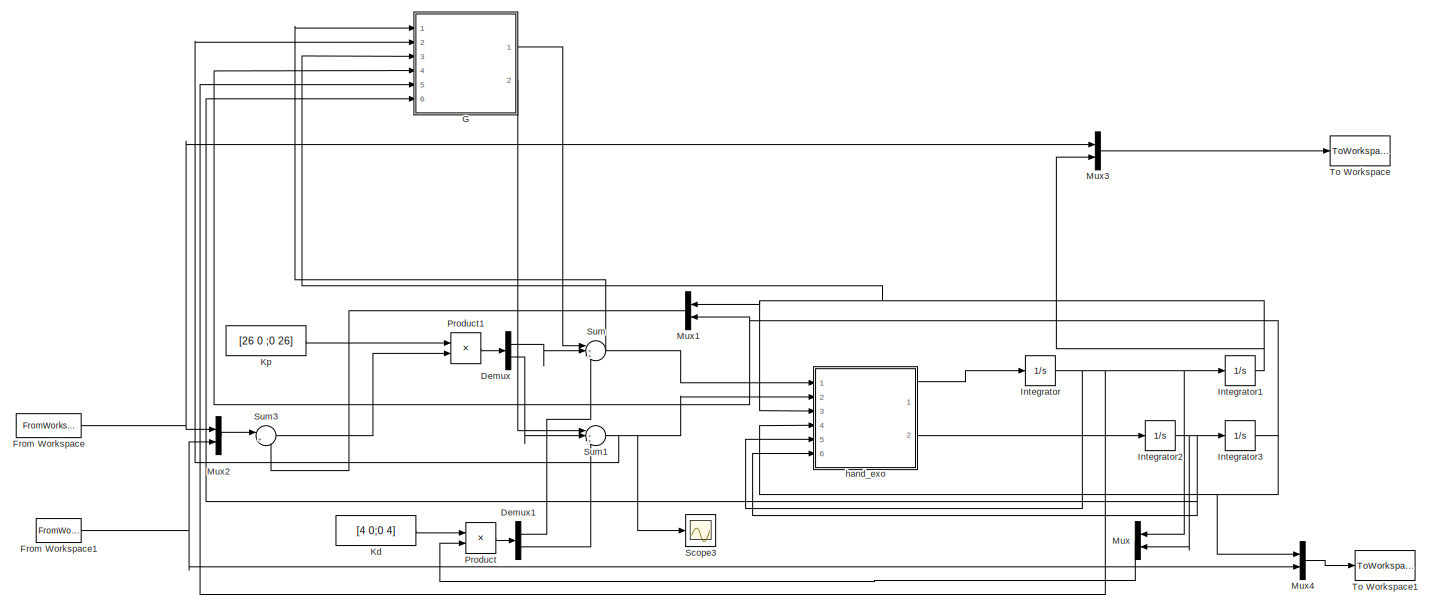
[diagram: root canvas - part 1/2, most of the canvas]
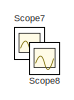
[diagram: root canvas - part 2/2, bottom right region]
MODEL slx_da8fc721fb78
KIND model
CONFIG AbsTol = auto
CONFIG FixedStep = auto
CONFIG MaxStep = auto
CONFIG MinStep = auto
CONFIG RelTol = 1e-8
CONFIG SampleTimeConstraint = Unconstrained
CONFIG Solver = ode15s
CONFIG SolverMode = Auto
CONFIG SolverName = ode15s
CONFIG StartTime = 0.0
CONFIG StopTime = 15
BLOCK [Demux] Demux
  DisplayOption = bar
  Outputs = 2
  Ports = [1, 2]
BLOCK [Demux] Demux1
  DisplayOption = bar
  Outputs = 2
  Ports = [1, 2]
BLOCK [FromWorkspace] From Workspace
  SampleTime = 0
  VariableName = y1
  ZeroCross = on
BLOCK [FromWorkspace] From Workspace1
  SampleTime = 0
  VariableName = y2
  ZeroCross = on
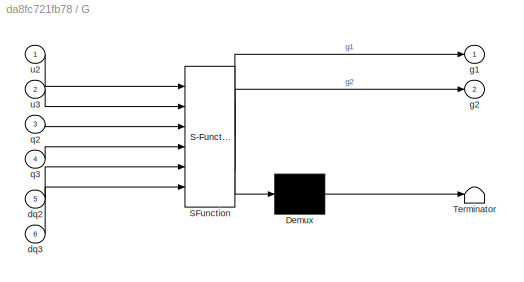
BLOCK [SubSystem] G
  ErrorFcn = Stateflow.Translate.translate
  PermitHierarchicalResolution = ExplicitOnly
  Ports = [6, 2]
  RequestExecContextInheritance = off
  SFBlockType = MATLAB Function
  TreatAsAtomicUnit = on
  Variant = off
BLOCK [Demux] G/ Demux 
  Outputs = 1
  Ports = [1, 1]
BLOCK [S-Function] G/ SFunction 
  EnableBusSupport = on
  FunctionName = sf_sfun
  PortCounts = [6 3]
  Ports = [6, 3]
  SFunctionDeploymentMode = off
  Tag = Stateflow S-Function hand_exo 1
BLOCK [Terminator] G/ Terminator 
BLOCK [Inport] G/dq2
  IconDisplay = Port number
  Port = 5
BLOCK [Inport] G/dq3
  IconDisplay = Port number
  Port = 6
BLOCK [Outport] G/g1
  IconDisplay = Port number
BLOCK [Outport] G/g2
  IconDisplay = Port number
  Port = 2
BLOCK [Inport] G/q2
  IconDisplay = Port number
  Port = 3
BLOCK [Inport] G/q3
  IconDisplay = Port number
  Port = 4
BLOCK [Inport] G/u2
  IconDisplay = Port number
BLOCK [Inport] G/u3
  IconDisplay = Port number
  Port = 2
BLOCK [Integrator] Integrator
  IgnoreLimit = on
  LowerSaturationLimit = -10
  Ports = [1, 1]
  UpperSaturationLimit = 10
  ZeroCross = off
BLOCK [Integrator] Integrator1
  LowerSaturationLimit = -100
  Ports = [1, 1]
  UpperSaturationLimit = 100
BLOCK [Integrator] Integrator2
  LowerSaturationLimit = -100
  Ports = [1, 1]
  UpperSaturationLimit = 100
BLOCK [Integrator] Integrator3
  LowerSaturationLimit = -100
  Ports = [1, 1]
  UpperSaturationLimit = 100
BLOCK [Constant] Kd
  Value = [4 0;0 4]
BLOCK [Constant] Kp
  Value = [26 0 ;0 26]
BLOCK [Mux] Mux
  DisplayOption = bar
  Inputs = 2
  Ports = [2, 1]
BLOCK [Mux] Mux1
  DisplayOption = bar
  Inputs = 2
  Ports = [2, 1]
BLOCK [Mux] Mux2
  DisplayOption = bar
  Inputs = 2
  Ports = [2, 1]
BLOCK [Mux] Mux3
  DisplayOption = bar
  Inputs = 2
  Ports = [2, 1]
BLOCK [Mux] Mux4
  DisplayOption = bar
  Inputs = 2
  Ports = [2, 1]
BLOCK [Product] Product
  InputSameDT = off
  Multiplication = Matrix(*)
  OutDataTypeStr = Inherit: Inherit via internal rule
  Ports = [2, 1]
  RndMeth = Floor
  SaturateOnIntegerOverflow = off
BLOCK [Product] Product1
  InputSameDT = off
  Multiplication = Matrix(*)
  OutDataTypeStr = Inherit: Inherit via internal rule
  Ports = [2, 1]
  RndMeth = Floor
  SaturateOnIntegerOverflow = off
BLOCK [Scope] Scope3
  Ports = [1]
  ScopeSpecificationString = Simulink.scopes.TimeScopeBlockCfg('CurrentConfiguration', extmgr.ConfigurationSet(extmgr.Configuration('Core','General UI',true),extmgr.Configuration('Core','Source UI',true),extmgr.Configuration('Sources','WiredSimulink',true,'DataLoggingVariableName','ScopeData3'),extmgr.Configuration('Visuals','Time Domain',true,'SerializedDisplays',{struct('MinYLimReal','-0.11773','MaxYLimReal','1.05957','YLab...<+1396ch>
BLOCK [Scope] Scope7
  Ports = [1]
  ScopeSpecificationString = Simulink.scopes.TimeScopeBlockCfg('CurrentConfiguration', extmgr.ConfigurationSet(extmgr.Configuration('Core','General UI',true),extmgr.Configuration('Core','Source UI',true),extmgr.Configuration('Sources','WiredSimulink',true,'DataLoggingVariableName','ScopeData4'),extmgr.Configuration('Visuals','Time Domain',true,'SerializedDisplays',{struct('MinYLimReal','-1.09289','MaxYLimReal','9.83599','YLab...<+1403ch>
BLOCK [Scope] Scope8
  Ports = [1]
  ScopeSpecificationString = Simulink.scopes.TimeScopeBlockCfg('CurrentConfiguration', extmgr.ConfigurationSet(extmgr.Configuration('Core','General UI',true),extmgr.Configuration('Core','Source UI',true),extmgr.Configuration('Sources','WiredSimulink',true,'DataLoggingVariableName','ScopeData5'),extmgr.Configuration('Visuals','Time Domain',true,'SerializedDisplays',{struct('MinYLimReal','-1.09289','MaxYLimReal','9.83599','YLab...<+1403ch>
BLOCK [Sum] Sum
  IconShape = round
  InputSameDT = off
  Inputs = |++-
  OutDataTypeStr = Inherit: Inherit via internal rule
  Ports = [3, 1]
  SaturateOnIntegerOverflow = off
BLOCK [Sum] Sum1
  IconShape = round
  InputSameDT = off
  Inputs = |++-
  OutDataTypeStr = Inherit: Inherit via internal rule
  Ports = [3, 1]
  SaturateOnIntegerOverflow = off
BLOCK [Sum] Sum3
  IconShape = round
  InputSameDT = off
  Inputs = |+-
  OutDataTypeStr = Inherit: Inherit via internal rule
  Ports = [2, 1]
  SaturateOnIntegerOverflow = off
BLOCK [ToWorkspace] To Workspace
  FixptAsFi = on
  MaxDataPoints = inf
  Ports = [1]
  SampleTime = -1
  Save2DSignal = 3-D array (concatenate along third dimension)
  SaveFormat = Timeseries
  VariableName = simout
BLOCK [ToWorkspace] To Workspace1
  FixptAsFi = on
  MaxDataPoints = inf
  Ports = [1]
  SampleTime = -1
  Save2DSignal = 3-D array (concatenate along third dimension)
  SaveFormat = Timeseries
  VariableName = simout1
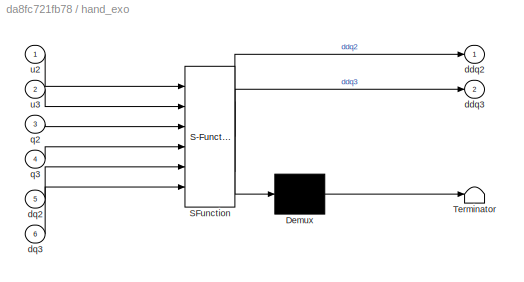
BLOCK [SubSystem] hand_exo
  ErrorFcn = Stateflow.Translate.translate
  PermitHierarchicalResolution = ExplicitOnly
  Ports = [6, 2]
  RequestExecContextInheritance = off
  SFBlockType = MATLAB Function
  TreatAsAtomicUnit = on
  Variant = off
BLOCK [Demux] hand_exo/ Demux 
  Outputs = 1
  Ports = [1, 1]
BLOCK [S-Function] hand_exo/ SFunction 
  EnableBusSupport = on
  FunctionName = sf_sfun
  PortCounts = [6 3]
  Ports = [6, 3]
  SFunctionDeploymentMode = off
  Tag = Stateflow S-Function hand_exo 5
BLOCK [Terminator] hand_exo/ Terminator 
BLOCK [Outport] hand_exo/ddq2
  IconDisplay = Port number
BLOCK [Outport] hand_exo/ddq3
  IconDisplay = Port number
  Port = 2
BLOCK [Inport] hand_exo/dq2
  IconDisplay = Port number
  Port = 5
BLOCK [Inport] hand_exo/dq3
  IconDisplay = Port number
  Port = 6
BLOCK [Inport] hand_exo/q2
  IconDisplay = Port number
  Port = 3
BLOCK [Inport] hand_exo/q3
  IconDisplay = Port number
  Port = 4
BLOCK [Inport] hand_exo/u2
  IconDisplay = Port number
BLOCK [Inport] hand_exo/u3
  IconDisplay = Port number
  Port = 2
LINE Demux1:1 -> Sum:3
LINE Demux1:2 -> Sum1:3
LINE Demux:1 -> Sum:2
LINE Demux:2 -> Sum1:2
NET From Workspace1:1 -> Mux2:2, Mux4:2
NET From Workspace:1 -> Mux2:1, Mux3:1
LINE G:1 -> Sum:1
LINE G:2 -> Sum1:1
NET Integrator1:1 -> G:3, Mux1:1, Mux3:2, hand_exo:3
NET Integrator2:1 -> G:6, Integrator3:1, Mux:2, hand_exo:6
NET Integrator3:1 -> G:4, Mux1:2, Mux4:1, hand_exo:4
NET Integrator:1 -> G:5, Integrator1:1, Mux:1, hand_exo:5
LINE Kd:1 -> Product:1
LINE Kp:1 -> Product1:1
LINE Mux1:1 -> Sum3:2
LINE Mux2:1 -> Sum3:1
LINE Mux3:1 -> To Workspace:1
LINE Mux4:1 -> To Workspace1:1
LINE Mux:1 -> Product:2
LINE Product1:1 -> Demux:1
LINE Product:1 -> Demux1:1
NET Sum1:1 -> G:2, Scope3:1, hand_exo:2
LINE Sum3:1 -> Product1:2
NET Sum:1 -> G:1, hand_exo:1
LINE hand_exo:1 -> Integrator:1
LINE hand_exo:2 -> Integrator2:1
note: NET lines group one-source signal fan-out (src -> all destinations, sorted); 1:1 wires keep LINE
CHART G states=1 transitions=1
  STATE_LABEL 'eML_blk_kernel()'
  STATE_LABEL 'SCRIPT:\nfunction [g1,g2]  = fcn(u2,u3,q2,q3,dq2,dq3)\n% L1 = 12; L2 = 20; L3 = 45; L4 = 15; L5 = 20;\n% m1 = 100; m2 = 70; m3 = 170; m4 = 100; m5 = 20;\n% I1 = m1*L1^2/3; I2 = m2*L2^2/3; I3 = m3*L3^2/3; I4 =m4*L4^2/3; I5 = m5*L5^2/3;\n% V=47;\n% H=20;\n\n\nL1 = 12/1000; L2 = 20/1000; L3 = 45/1000; L4 = 15/1000; L5 = 20/1000;\nm1 = 100/1000; m2 = 70/1000; m3 = 170/1000; m4 = 100/1000; m5 = 20/1000;\nI1 = m1*...<+496ch>'
CHART hand_exo states=1 transitions=1
  STATE_LABEL 'eML_blk_kernel()'
  STATE_LABEL 'SCRIPT:\nfunction [ddq2,ddq3] = fcn(u2,u3,q2,q3,dq2,dq3)\n% L1 = 12; L2 = 20; L3 = 45; L4 = 15; L5 = 20;\n% m1 = 100; m2 = 70; m3 = 170; m4 = 100; m5 = 20;\n% I1 = m1*L1^2/3; I2 = m2*L2^2/3; I3 = m3*L3^2/3; I4 =m4*L4^2/3; I5 = m5*L5^2/3;\n% V=47;\n% H=20;\n\n\nL1 = 12/1000; L2 = 20/1000; L3 = 45/1000; L4 = 15/1000; L5 = 20/1000;\nm1 = 100/1000; m2 = 70/1000; m3 = 170/1000; m4 = 100/1000; m5 = 20/1000;\nI1 = ...<+2185ch>'
